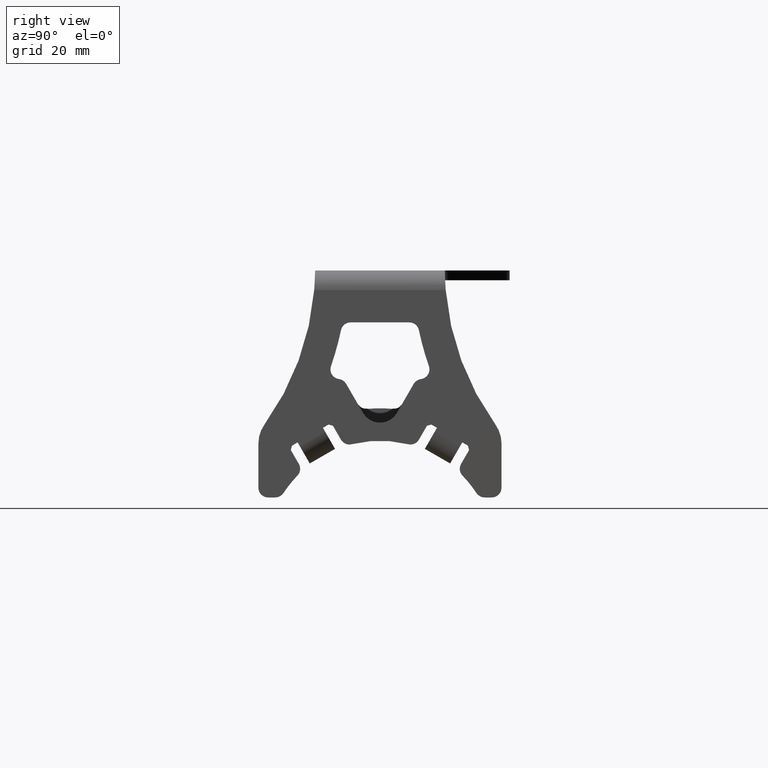
[diagram: clean part render]
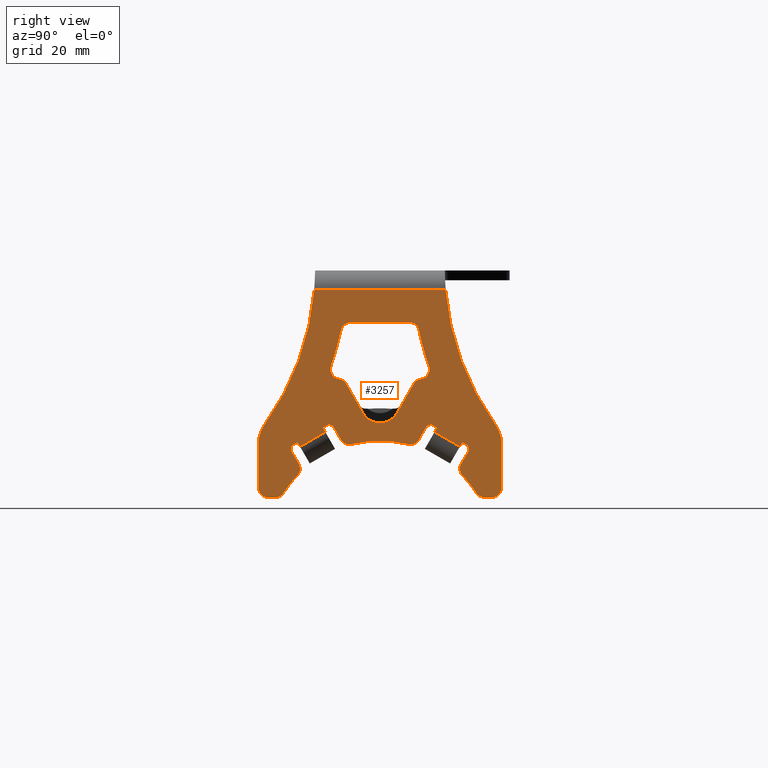
[diagram: same view with one face highlighted and labeled with its STEP entity id]
A machine part, right view. The second image highlights one B-rep face of the part: STEP entity #3257.
In plain terms, the highlighted planar face has unit normal (-1, 0, -0).
Its self-contained STEP definition (entity closure, byte-faithful):
#28=FACE_BOUND('',#525,.T.);
#40=CIRCLE('',#3392,6.0000000000246);
#72=CIRCLE('',#3443,35.5);
#73=CIRCLE('',#3445,35.5);
#74=CIRCLE('',#3447,35.5);
#83=CIRCLE('',#3471,3.);
#84=CIRCLE('',#3473,3.);
#85=CIRCLE('',#3475,3.);
#86=CIRCLE('',#3477,3.);
#87=CIRCLE('',#3479,3.);
#88=CIRCLE('',#3481,92.4414286425771);
#89=CIRCLE('',#3484,92.4414286425785);
#90=CIRCLE('',#3486,3.);
#91=CIRCLE('',#3492,3.);
#92=CIRCLE('',#3495,3.);
#93=CIRCLE('',#3498,3.);
#94=CIRCLE('',#3500,3.);
#95=CIRCLE('',#3503,3.);
#96=CIRCLE('',#3505,3.);
#97=CIRCLE('',#3507,3.);
#98=CIRCLE('',#3510,3.);
#99=CIRCLE('',#3512,10.);
#100=CIRCLE('',#3513,10.);
#101=CIRCLE('',#3514,82.4414286425785);
#102=CIRCLE('',#3515,82.4414286425771);
#341=FACE_OUTER_BOUND('',#524,.T.);
#524=EDGE_LOOP('',(#2425,#2426,#2427,#2428,#2429,#2430,#2431,#2432,#2433,
#2434,#2435,#2436,#2437,#2438,#2439,#2440,#2441,#2442,#2443,#2444,#2445,
#2446,#2447,#2448,#2449,#2450,#2451,#2452,#2453,#2454,#2455,#2456,#2457,
#2458,#2459,#2460,#2461,#2462));
#525=EDGE_LOOP('',(#2463,#2464,#2465,#2466,#2467,#2468,#2469,#2470,#2471,
#2472,#2473,#2474,#2475,#2476));
#654=LINE('',#4727,#982);
#659=LINE('',#4741,#987);
#716=LINE('',#4946,#1044);
#730=LINE('',#5045,#1058);
#732=LINE('',#5049,#1060);
#735=LINE('',#5055,#1063);
#738=LINE('',#5061,#1066);
#740=LINE('',#5065,#1068);
#743=LINE('',#5071,#1071);
#744=LINE('',#5080,#1072);
#745=LINE('',#5089,#1073);
#755=LINE('',#5121,#1083);
#757=LINE('',#5129,#1085);
#758=LINE('',#5131,#1086);
#761=LINE('',#5137,#1089);
#763=LINE('',#5142,#1091);
#767=LINE('',#5151,#1095);
#770=LINE('',#5159,#1098);
#774=LINE('',#5171,#1102);
#778=LINE('',#5185,#1106);
#779=LINE('',#5192,#1107);
#780=LINE('',#5193,#1108);
#781=LINE('',#5195,#1109);
#782=LINE('',#5196,#1110);
#783=LINE('',#5198,#1111);
#784=LINE('',#5199,#1112);
#785=LINE('',#5201,#1113);
#786=LINE('',#5202,#1114);
#982=VECTOR('',#3728,10.);
#987=VECTOR('',#3741,10.);
#1044=VECTOR('',#3894,10.);
#1058=VECTOR('',#3922,10.);
#1060=VECTOR('',#3926,10.);
#1063=VECTOR('',#3931,10.);
#1066=VECTOR('',#3936,10.);
#1068=VECTOR('',#3940,10.);
#1071=VECTOR('',#3945,10.);
#1072=VECTOR('',#3962,10.);
#1073=VECTOR('',#3979,10.);
#1083=VECTOR('',#4015,10.);
#1085=VECTOR('',#4027,10.);
#1086=VECTOR('',#4030,10.);
#1089=VECTOR('',#4035,10.);
#1091=VECTOR('',#4039,10.);
#1095=VECTOR('',#4049,10.);
#1098=VECTOR('',#4058,10.);
#1102=VECTOR('',#4072,10.);
#1106=VECTOR('',#4090,10.);
#1107=VECTOR('',#4099,10.);
#1108=VECTOR('',#4100,10.);
#1109=VECTOR('',#4101,10.);
#1110=VECTOR('',#4102,10.);
#1111=VECTOR('',#4103,10.);
#1112=VECTOR('',#4104,10.);
#1113=VECTOR('',#4105,10.);
#1114=VECTOR('',#4106,10.);
#1309=VERTEX_POINT('',#4723);
#1311=VERTEX_POINT('',#4726);
#1314=VERTEX_POINT('',#4734);
#1316=VERTEX_POINT('',#4740);
#1391=VERTEX_POINT('',#4944);
#1392=VERTEX_POINT('',#4945);
#1395=VERTEX_POINT('',#5023);
#1396=VERTEX_POINT('',#5025);
#1397=VERTEX_POINT('',#5029);
#1398=VERTEX_POINT('',#5031);
#1399=VERTEX_POINT('',#5035);
#1400=VERTEX_POINT('',#5037);
#1401=VERTEX_POINT('',#5041);
#1402=VERTEX_POINT('',#5043);
#1403=VERTEX_POINT('',#5047);
#1404=VERTEX_POINT('',#5051);
#1405=VERTEX_POINT('',#5053);
#1406=VERTEX_POINT('',#5057);
#1407=VERTEX_POINT('',#5059);
#1408=VERTEX_POINT('',#5063);
#1409=VERTEX_POINT('',#5067);
#1410=VERTEX_POINT('',#5069);
#1411=VERTEX_POINT('',#5091);
#1412=VERTEX_POINT('',#5092);
#1413=VERTEX_POINT('',#5097);
#1414=VERTEX_POINT('',#5098);
#1415=VERTEX_POINT('',#5103);
#1416=VERTEX_POINT('',#5104);
#1417=VERTEX_POINT('',#5109);
#1418=VERTEX_POINT('',#5111);
#1419=VERTEX_POINT('',#5115);
#1420=VERTEX_POINT('',#5125);
#1421=VERTEX_POINT('',#5133);
#1422=VERTEX_POINT('',#5135);
#1423=VERTEX_POINT('',#5139);
#1424=VERTEX_POINT('',#5141);
#1425=VERTEX_POINT('',#5145);
#1426=VERTEX_POINT('',#5149);
#1427=VERTEX_POINT('',#5155);
#1428=VERTEX_POINT('',#5157);
#1429=VERTEX_POINT('',#5163);
#1430=VERTEX_POINT('',#5167);
#1431=VERTEX_POINT('',#5169);
#1432=VERTEX_POINT('',#5175);
#1433=VERTEX_POINT('',#5179);
#1434=VERTEX_POINT('',#5183);
#1435=VERTEX_POINT('',#5189);
#1436=VERTEX_POINT('',#5191);
#1437=VERTEX_POINT('',#5194);
#1438=VERTEX_POINT('',#5197);
#1439=VERTEX_POINT('',#5200);
#1440=VERTEX_POINT('',#5203);
#1622=EDGE_CURVE('',#1311,#1309,#654,.T.);
#1626=EDGE_CURVE('',#1314,#1311,#40,.T.);
#1629=EDGE_CURVE('',#1316,#1314,#659,.T.);
#1719=EDGE_CURVE('',#1391,#1392,#716,.T.);
#1729=EDGE_CURVE('',#1396,#1395,#72,.T.);
#1732=EDGE_CURVE('',#1398,#1397,#73,.T.);
#1735=EDGE_CURVE('',#1400,#1399,#74,.T.);
#1738=EDGE_CURVE('',#1402,#1401,#730,.T.);
#1740=EDGE_CURVE('',#1403,#1402,#732,.T.);
#1743=EDGE_CURVE('',#1405,#1404,#735,.T.);
#1746=EDGE_CURVE('',#1407,#1406,#738,.T.);
#1748=EDGE_CURVE('',#1408,#1407,#740,.T.);
#1751=EDGE_CURVE('',#1410,#1409,#743,.T.);
#1756=EDGE_CURVE('',#1404,#1403,#744,.T.);
#1761=EDGE_CURVE('',#1409,#1408,#745,.T.);
#1762=EDGE_CURVE('',#1411,#1412,#83,.T.);
#1765=EDGE_CURVE('',#1413,#1414,#84,.T.);
#1768=EDGE_CURVE('',#1415,#1416,#85,.F.);
#1772=EDGE_CURVE('',#1417,#1418,#86,.F.);
#1774=EDGE_CURVE('',#1419,#1418,#87,.T.);
#1776=EDGE_CURVE('',#1413,#1417,#88,.T.);
#1777=EDGE_CURVE('',#1411,#1414,#755,.T.);
#1778=EDGE_CURVE('',#1416,#1412,#89,.T.);
#1780=EDGE_CURVE('',#1420,#1415,#90,.T.);
#1781=EDGE_CURVE('',#1316,#1420,#757,.T.);
#1782=EDGE_CURVE('',#1309,#1419,#758,.T.);
#1785=EDGE_CURVE('',#1422,#1421,#761,.T.);
#1787=EDGE_CURVE('',#1423,#1424,#763,.T.);
#1789=EDGE_CURVE('',#1425,#1424,#91,.T.);
#1792=EDGE_CURVE('',#1425,#1426,#767,.T.);
#1793=EDGE_CURVE('',#1398,#1426,#92,.T.);
#1796=EDGE_CURVE('',#1428,#1427,#770,.T.);
#1797=EDGE_CURVE('',#1428,#1397,#93,.T.);
#1799=EDGE_CURVE('',#1400,#1429,#94,.T.);
#1802=EDGE_CURVE('',#1431,#1430,#774,.T.);
#1803=EDGE_CURVE('',#1431,#1399,#95,.T.);
#1805=EDGE_CURVE('',#1396,#1432,#96,.T.);
#1806=EDGE_CURVE('',#1433,#1395,#97,.T.);
#1809=EDGE_CURVE('',#1433,#1434,#778,.T.);
#1810=EDGE_CURVE('',#1422,#1434,#98,.T.);
#1811=EDGE_CURVE('',#1435,#1421,#99,.T.);
#1812=EDGE_CURVE('',#1436,#1432,#779,.T.);
#1813=EDGE_CURVE('',#1436,#1406,#780,.T.);
#1814=EDGE_CURVE('',#1437,#1410,#781,.T.);
#1815=EDGE_CURVE('',#1437,#1430,#782,.T.);
#1816=EDGE_CURVE('',#1438,#1429,#783,.T.);
#1817=EDGE_CURVE('',#1438,#1401,#784,.T.);
#1818=EDGE_CURVE('',#1439,#1405,#785,.T.);
#1819=EDGE_CURVE('',#1439,#1427,#786,.T.);
#1820=EDGE_CURVE('',#1423,#1440,#100,.T.);
#1821=EDGE_CURVE('',#1392,#1440,#101,.T.);
#1822=EDGE_CURVE('',#1435,#1391,#102,.T.);
#2425=ORIENTED_EDGE('',*,*,#1811,.T.);
#2426=ORIENTED_EDGE('',*,*,#1785,.F.);
#2427=ORIENTED_EDGE('',*,*,#1810,.T.);
#2428=ORIENTED_EDGE('',*,*,#1809,.F.);
#2429=ORIENTED_EDGE('',*,*,#1806,.T.);
#2430=ORIENTED_EDGE('',*,*,#1729,.F.);
#2431=ORIENTED_EDGE('',*,*,#1805,.T.);
#2432=ORIENTED_EDGE('',*,*,#1812,.F.);
#2433=ORIENTED_EDGE('',*,*,#1813,.T.);
#2434=ORIENTED_EDGE('',*,*,#1746,.F.);
#2435=ORIENTED_EDGE('',*,*,#1748,.F.);
#2436=ORIENTED_EDGE('',*,*,#1761,.F.);
#2437=ORIENTED_EDGE('',*,*,#1751,.F.);
#2438=ORIENTED_EDGE('',*,*,#1814,.F.);
#2439=ORIENTED_EDGE('',*,*,#1815,.T.);
#2440=ORIENTED_EDGE('',*,*,#1802,.F.);
#2441=ORIENTED_EDGE('',*,*,#1803,.T.);
#2442=ORIENTED_EDGE('',*,*,#1735,.F.);
#2443=ORIENTED_EDGE('',*,*,#1799,.T.);
#2444=ORIENTED_EDGE('',*,*,#1816,.F.);
#2445=ORIENTED_EDGE('',*,*,#1817,.T.);
#2446=ORIENTED_EDGE('',*,*,#1738,.F.);
#2447=ORIENTED_EDGE('',*,*,#1740,.F.);
#2448=ORIENTED_EDGE('',*,*,#1756,.F.);
#2449=ORIENTED_EDGE('',*,*,#1743,.F.);
#2450=ORIENTED_EDGE('',*,*,#1818,.F.);
#2451=ORIENTED_EDGE('',*,*,#1819,.T.);
#2452=ORIENTED_EDGE('',*,*,#1796,.F.);
#2453=ORIENTED_EDGE('',*,*,#1797,.T.);
#2454=ORIENTED_EDGE('',*,*,#1732,.F.);
#2455=ORIENTED_EDGE('',*,*,#1793,.T.);
#2456=ORIENTED_EDGE('',*,*,#1792,.F.);
#2457=ORIENTED_EDGE('',*,*,#1789,.T.);
#2458=ORIENTED_EDGE('',*,*,#1787,.F.);
#2459=ORIENTED_EDGE('',*,*,#1820,.T.);
#2460=ORIENTED_EDGE('',*,*,#1821,.F.);
#2461=ORIENTED_EDGE('',*,*,#1719,.F.);
#2462=ORIENTED_EDGE('',*,*,#1822,.F.);
#2463=ORIENTED_EDGE('',*,*,#1622,.T.);
#2464=ORIENTED_EDGE('',*,*,#1782,.T.);
#2465=ORIENTED_EDGE('',*,*,#1774,.T.);
#2466=ORIENTED_EDGE('',*,*,#1772,.F.);
#2467=ORIENTED_EDGE('',*,*,#1776,.F.);
#2468=ORIENTED_EDGE('',*,*,#1765,.T.);
#2469=ORIENTED_EDGE('',*,*,#1777,.F.);
#2470=ORIENTED_EDGE('',*,*,#1762,.T.);
#2471=ORIENTED_EDGE('',*,*,#1778,.F.);
#2472=ORIENTED_EDGE('',*,*,#1768,.F.);
#2473=ORIENTED_EDGE('',*,*,#1780,.F.);
#2474=ORIENTED_EDGE('',*,*,#1781,.F.);
#2475=ORIENTED_EDGE('',*,*,#1629,.T.);
#2476=ORIENTED_EDGE('',*,*,#1626,.T.);
#3129=PLANE('',#3511);
#3257=ADVANCED_FACE('',(#341,#28),#3129,.F.);
#3392=AXIS2_PLACEMENT_3D('',#4735,#3735,#3736);
#3443=AXIS2_PLACEMENT_3D('',#5027,#3904,#3905);
#3445=AXIS2_PLACEMENT_3D('',#5033,#3910,#3911);
#3447=AXIS2_PLACEMENT_3D('',#5039,#3916,#3917);
#3471=AXIS2_PLACEMENT_3D('',#5093,#3982,#3983);
#3473=AXIS2_PLACEMENT_3D('',#5099,#3988,#3989);
#3475=AXIS2_PLACEMENT_3D('',#5105,#3994,#3995);
#3477=AXIS2_PLACEMENT_3D('',#5112,#4001,#4002);
#3479=AXIS2_PLACEMENT_3D('',#5116,#4006,#4007);
#3481=AXIS2_PLACEMENT_3D('',#5119,#4011,#4012);
#3484=AXIS2_PLACEMENT_3D('',#5123,#4018,#4019);
#3486=AXIS2_PLACEMENT_3D('',#5127,#4023,#4024);
#3492=AXIS2_PLACEMENT_3D('',#5146,#4043,#4044);
#3495=AXIS2_PLACEMENT_3D('',#5153,#4052,#4053);
#3498=AXIS2_PLACEMENT_3D('',#5161,#4061,#4062);
#3500=AXIS2_PLACEMENT_3D('',#5165,#4066,#4067);
#3503=AXIS2_PLACEMENT_3D('',#5173,#4075,#4076);
#3505=AXIS2_PLACEMENT_3D('',#5177,#4080,#4081);
#3507=AXIS2_PLACEMENT_3D('',#5180,#4084,#4085);
#3510=AXIS2_PLACEMENT_3D('',#5187,#4093,#4094);
#3511=AXIS2_PLACEMENT_3D('',#5188,#4095,#4096);
#3512=AXIS2_PLACEMENT_3D('',#5190,#4097,#4098);
#3513=AXIS2_PLACEMENT_3D('',#5204,#4107,#4108);
#3514=AXIS2_PLACEMENT_3D('',#5205,#4109,#4110);
#3515=AXIS2_PLACEMENT_3D('',#5206,#4111,#4112);
#3728=DIRECTION('',(-1.5935514581554E-15,-0.499999954605923,0.86602542999272));
#3735=DIRECTION('center_axis',(-1.,0.,-1.84007467098142E-15));
#3736=DIRECTION('ref_axis',(0.,-0.86602542999272,-0.499999954605923));
#3741=DIRECTION('',(1.59355136170936E-15,-0.500000045389974,-0.866025377578523));
#3894=DIRECTION('',(0.,1.,0.));
#3904=DIRECTION('center_axis',(1.,0.,1.84007467098142E-15));
#3905=DIRECTION('ref_axis',(-1.36467874985934E-15,-0.861921198917985,0.507042253521127));
#3910=DIRECTION('center_axis',(1.,0.,1.84007467098142E-15));
#3911=DIRECTION('ref_axis',(-1.99394413079214E-15,0.671677242289599,0.740843898665731));
#3916=DIRECTION('center_axis',(1.,0.,1.84007467098142E-15));
#3917=DIRECTION('ref_axis',(-2.56256027656686E-15,-0.305751015338425,0.952111504299534));
#3922=DIRECTION('',(-9.20037335490711E-16,-0.866025403784438,0.500000000000001));
#3926=DIRECTION('',(-1.5935514099302E-15,0.5,0.866025403784439));
#3931=DIRECTION('',(1.5935514099302E-15,-0.5,-0.866025403784439));
#3936=DIRECTION('',(9.20037335490706E-16,-0.86602540378444,-0.499999999999998));
#3940=DIRECTION('',(-1.5935514099302E-15,-0.499999999999999,0.866025403784439));
#3945=DIRECTION('',(1.5935514099302E-15,0.499999999999999,-0.866025403784439));
#3962=DIRECTION('',(-9.20037335490711E-16,-0.866025403784438,0.500000000000001));
#3979=DIRECTION('',(9.20037335490708E-16,-0.866025403784439,-0.499999999999999));
#3982=DIRECTION('center_axis',(-1.,0.,-1.84007467098142E-15));
#3983=DIRECTION('ref_axis',(0.,0.62955994286868,0.776951915072731));
#3988=DIRECTION('center_axis',(-1.,0.,-1.84007467098142E-15));
#3989=DIRECTION('ref_axis',(0.,-0.629559879154679,0.776951966699838));
#3994=DIRECTION('center_axis',(-1.,0.,-1.84007467098142E-15));
#3995=DIRECTION('ref_axis',(0.,0.944754534548987,0.327778689742222));
#4001=DIRECTION('center_axis',(-1.,0.,-1.84007467098142E-15));
#4002=DIRECTION('ref_axis',(0.,-0.944754471799468,0.327778870604725));
#4006=DIRECTION('center_axis',(1.,0.,1.84007467098142E-15));
#4007=DIRECTION('ref_axis',(0.,0.552956208785422,0.833210316286142));
#4011=DIRECTION('center_axis',(-1.,0.,-1.84007467098142E-15));
#4012=DIRECTION('ref_axis',(2.44361462179158E-16,0.983375525815702,-0.181583521352272));
#4015=DIRECTION('',(-7.08305686973369E-31,-1.,3.84933121543154E-16));
#4018=DIRECTION('center_axis',(-1.,0.,-1.84007467098142E-15));
#4019=DIRECTION('ref_axis',(5.54725221084057E-16,-0.911087528399442,-0.412212949329586));
#4023=DIRECTION('center_axis',(-1.,0.,-1.84007467098142E-15));
#4024=DIRECTION('ref_axis',(0.,-0.552956745400652,0.833209960163654));
#4027=DIRECTION('',(-1.5935514099302E-15,0.5,0.866025403784438));
#4030=DIRECTION('',(-1.5935514099302E-15,-0.499999999999998,0.86602540378444));
#4035=DIRECTION('',(-1.84007467098142E-15,0.,1.));
#4039=DIRECTION('',(1.84007467098142E-15,-8.88178419700124E-16,-1.));
#4043=DIRECTION('center_axis',(1.,0.,1.84007467098142E-15));
#4044=DIRECTION('ref_axis',(0.,0.707106781186548,-0.707106781186548));
#4049=DIRECTION('',(0.,-1.,0.));
#4052=DIRECTION('center_axis',(1.,0.,1.84007467098142E-15));
#4053=DIRECTION('ref_axis',(0.,-0.476731294622794,-0.879049072991534));
#4058=DIRECTION('',(-1.59355140993019E-15,0.500000000000014,0.866025403784431));
#4061=DIRECTION('center_axis',(1.,0.,1.84007467098142E-15));
#4062=DIRECTION('ref_axis',(0.,-0.992360624285522,-0.123370950258351));
#4066=DIRECTION('center_axis',(1.,0.,1.84007467098142E-15));
#4067=DIRECTION('ref_axis',(0.,0.389337935129989,-0.921094985475829));
#4072=DIRECTION('',(-1.59355140993022E-15,-0.499999999999985,0.866025403784447));
#4075=DIRECTION('center_axis',(1.,0.,1.84007467098142E-15));
#4076=DIRECTION('ref_axis',(0.,-0.389337935130004,-0.921094985475822));
#4080=DIRECTION('center_axis',(1.,0.,1.84007467098142E-15));
#4081=DIRECTION('ref_axis',(0.,0.992360624285521,-0.123370950258361));
#4084=DIRECTION('center_axis',(1.,0.,1.84007467098142E-15));
#4085=DIRECTION('ref_axis',(0.,0.476731294622795,-0.879049072991533));
#4090=DIRECTION('',(0.,-1.,0.));
#4093=DIRECTION('center_axis',(1.,0.,1.84007467098142E-15));
#4094=DIRECTION('ref_axis',(0.,-0.707106781186548,-0.707106781186548));
#4095=DIRECTION('center_axis',(-1.,0.,-1.84007467098142E-15));
#4096=DIRECTION('ref_axis',(-1.84007467098142E-15,0.,1.));
#4097=DIRECTION('center_axis',(1.,0.,1.84007467098142E-15));
#4098=DIRECTION('ref_axis',(0.,-0.951496437087984,0.307659763714515));
#4099=DIRECTION('',(1.5935514099302E-15,0.500000000000002,-0.866025403784437));
#4100=DIRECTION('',(-1.77737564700131E-15,0.258819045102533,0.965925826289065));
#4101=DIRECTION('',(9.20037335490706E-16,-0.86602540378444,-0.499999999999998));
#4102=DIRECTION('',(4.76246369260647E-16,0.965925826289083,-0.258819045102467));
#4103=DIRECTION('',(1.59355140993019E-15,-0.500000000000011,-0.866025403784432));
#4104=DIRECTION('',(-4.76246369260818E-16,0.965925826289058,0.25881904510256));
#4105=DIRECTION('',(-9.20037335490711E-16,-0.866025403784438,0.500000000000001));
#4106=DIRECTION('',(1.77737564700129E-15,0.258819045102563,-0.965925826289057));
#4107=DIRECTION('center_axis',(1.,0.,1.84007467098142E-15));
#4108=DIRECTION('ref_axis',(0.,0.951496437087981,0.307659763714524));
#4109=DIRECTION('center_axis',(1.,0.,1.84007467098142E-15));
#4110=DIRECTION('ref_axis',(1.13352851147788E-15,-0.787728084190875,-0.616023104580481));
#4111=DIRECTION('center_axis',(1.,0.,1.84007467098142E-15));
#4112=DIRECTION('ref_axis',(0.,1.,0.));
#4723=CARTESIAN_POINT('',(100.,-16.8218164096081,-38.1842673786516));
#4726=CARTESIAN_POINT('',(100.,-15.1961532123504,-40.9999997276478));
#4727=CARTESIAN_POINT('',(100.,-43.3446483379951,7.75462988836384));
#4734=CARTESIAN_POINT('',(100.,-4.80384836688034,-41.0000002723521));
#4735=CARTESIAN_POINT('Origin',(99.9999999999998,-10.0000006323728,-38.));
#4740=CARTESIAN_POINT('',(100.,-3.17818359039188,-38.1842673786517));
#4741=CARTESIAN_POINT('',(99.9999999999999,28.4567822237284,16.6090948293606));
#4944=CARTESIAN_POINT('',(100.,-30.2797494342295,-2.99999999999999));
#4945=CARTESIAN_POINT('',(100.,10.279748169484,-2.99999999999999));
#4946=CARTESIAN_POINT('',(100.,-5.,-2.99999999999999));
#5023=CARTESIAN_POINT('',(100.,-39.7539843848997,-65.6363636363636));
#5025=CARTESIAN_POINT('',(100.,-35.4618225989662,-60.2624659689213));
#5027=CARTESIAN_POINT('Origin',(100.,-10.,-85.));
#5029=CARTESIAN_POINT('',(100.,15.4618225989663,-60.2624659689214));
#5031=CARTESIAN_POINT('',(100.,19.7539843848997,-65.6363636363636));
#5033=CARTESIAN_POINT('Origin',(100.,-10.,-85.));
#5035=CARTESIAN_POINT('',(100.,-18.6924215984129,-50.5806477871032));
#5037=CARTESIAN_POINT('',(100.,-1.30757840158696,-50.5806477871032));
#5039=CARTESIAN_POINT('Origin',(100.,-10.,-85.));
#5041=CARTESIAN_POINT('',(100.,5.87083487540115,-44.5109076372692));
#5043=CARTESIAN_POINT('',(100.,7.60288568297002,-45.5109076372692));
#5045=CARTESIAN_POINT('',(100.,-27.5718905157367,-25.2027411302609));
#5047=CARTESIAN_POINT('',(100.,6.85288568297002,-46.8099457429458));
#5049=CARTESIAN_POINT('',(100.,37.6771809345151,6.57929974023424));
#5051=CARTESIAN_POINT('',(100.,14.64711431703,-51.3099457429458));
#5053=CARTESIAN_POINT('',(100.,15.39711431703,-50.0109076372692));
#5055=CARTESIAN_POINT('',(100.,43.596409568575,-1.16829552395742));
#5057=CARTESIAN_POINT('',(100.,-37.1291651245988,-51.0109076372691));
#5059=CARTESIAN_POINT('',(100.,-35.3971143170299,-50.0109076372691));
#5061=CARTESIAN_POINT('',(100.,8.57669998735337,-24.6226141113389));
#5063=CARTESIAN_POINT('',(100.,-34.6471143170299,-51.3099457429457));
#5065=CARTESIAN_POINT('',(100.,-62.9714095685749,-2.25082727868779));
#5067=CARTESIAN_POINT('',(100.,-26.8528856829699,-46.8099457429458));
#5069=CARTESIAN_POINT('',(100.,-27.6028856829699,-45.5109076372691));
#5071=CARTESIAN_POINT('',(100.,-53.3021809345149,-0.998422542879461));
#5080=CARTESIAN_POINT('',(100.,-27.02285241006,-27.2517792359376));
#5089=CARTESIAN_POINT('',(100.,10.62573809303,-25.1716522170155));
#5091=CARTESIAN_POINT('',(100.,-0.92659285081197,-13.));
#5092=CARTESIAN_POINT('',(99.9999999999999,2.00823396877745,-15.3780743299889));
#5093=CARTESIAN_POINT('Origin',(100.,-0.926592850811971,-16.));
#5097=CARTESIAN_POINT('',(99.9999999999999,-22.008237111854,-15.3780738486475));
#5098=CARTESIAN_POINT('',(100.,-19.0734103942668,-13.));
#5099=CARTESIAN_POINT('Origin',(100.,-19.0734103942668,-16.));
#5103=CARTESIAN_POINT('',(100.,2.64559874490872,-30.4745765841858));
#5104=CARTESIAN_POINT('',(100.,5.10696975231447,-26.5145055399121));
#5105=CARTESIAN_POINT('Origin',(100.,2.27270614866751,-27.4978416091387));
#5109=CARTESIAN_POINT('',(100.,-25.106975552971,-26.5145069457973));
#5111=CARTESIAN_POINT('',(100.,-22.6456008995795,-30.4745790129667));
#5112=CARTESIAN_POINT('Origin',(100.,-22.2727121375726,-27.4978435576115));
#5115=CARTESIAN_POINT('',(100.,-20.4204134502331,-31.951314468322));
#5116=CARTESIAN_POINT('Origin',(100.,-23.0184896615864,-33.451314468322));
#5119=CARTESIAN_POINT('Origin',(99.9999999999999,-112.441428642577,3.78584013175393));
#5121=CARTESIAN_POINT('',(100.,0.768393658188163,-13.));
#5123=CARTESIAN_POINT('Origin',(99.9999999999999,92.4414286425771,3.7858248184514));
#5125=CARTESIAN_POINT('',(100.,0.42041512979663,-31.9513115592329));
#5127=CARTESIAN_POINT('Origin',(100.,3.01849134114994,-33.4513115592329));
#5129=CARTESIAN_POINT('',(100.,26.1688506853173,12.6462870383419));
#5131=CARTESIAN_POINT('',(100.,-46.4188506853172,13.0792997402345));
#5133=CARTESIAN_POINT('',(100.,-47.5,-50.336244108325));
#5135=CARTESIAN_POINT('',(100.,-47.5,-64.));
#5137=CARTESIAN_POINT('',(99.9999999999999,-47.5,25.3929277225283));
#5139=CARTESIAN_POINT('',(100.,27.5,-50.3362594216299));
#5141=CARTESIAN_POINT('',(100.,27.5,-64.));
#5142=CARTESIAN_POINT('',(100.,27.5000000000001,15.392920065877));
#5145=CARTESIAN_POINT('',(100.,24.5,-67.));
#5146=CARTESIAN_POINT('Origin',(100.,24.5,-64.));
#5149=CARTESIAN_POINT('',(100.,22.2684056005251,-67.));
#5151=CARTESIAN_POINT('',(100.,-30.,-67.));
#5153=CARTESIAN_POINT('Origin',(100.,22.2684056005251,-64.));
#5155=CARTESIAN_POINT('',(100.,17.4951905283834,-52.3769330410537));
#5157=CARTESIAN_POINT('',(100.,15.0154497058355,-56.6719701353091));
#5159=CARTESIAN_POINT('',(100.,45.9941615663776,-3.01526723981558));
#5161=CARTESIAN_POINT('Origin',(100.,17.6135259171888,-58.1719701353092));
#5163=CARTESIAN_POINT('',(100.,2.02506864906884,-49.1719701353092));
#5165=CARTESIAN_POINT('Origin',(100.,-0.573007562284457,-47.6719701353091));
#5167=CARTESIAN_POINT('',(100.,-24.5048094716165,-44.8769330410535));
#5169=CARTESIAN_POINT('',(100.,-22.0250686490687,-49.1719701353091));
#5171=CARTESIAN_POINT('',(100.,-50.5037805096099,0.154605741264615));
#5173=CARTESIAN_POINT('Origin',(100.,-19.4269924377154,-47.6719701353091));
#5175=CARTESIAN_POINT('',(100.,-35.0154497058353,-56.6719701353091));
#5177=CARTESIAN_POINT('Origin',(100.,-37.6135259171887,-58.1719701353091));
#5179=CARTESIAN_POINT('',(100.,-42.2684056005251,-67.));
#5180=CARTESIAN_POINT('Origin',(100.,-42.2684056005251,-64.));
#5183=CARTESIAN_POINT('',(100.,-44.5,-67.));
#5185=CARTESIAN_POINT('',(100.,-30.,-67.));
#5187=CARTESIAN_POINT('Origin',(100.,-44.5,-64.));
#5188=CARTESIAN_POINT('Origin',(99.9999999999998,0.,97.785840131754));
#5189=CARTESIAN_POINT('',(100.,-45.6069093958226,-44.4815007281311));
#5190=CARTESIAN_POINT('Origin',(100.,-37.5,-50.336244108325));
#5191=CARTESIAN_POINT('',(100.,-37.4951905283832,-52.3769330410535));
#5192=CARTESIAN_POINT('',(100.,-63.6944857799283,-6.99842254287971));
#5193=CARTESIAN_POINT('',(99.9999999999999,-17.3774867780688,22.703359486735));
#5194=CARTESIAN_POINT('',(100.,-25.8708348754011,-44.5109076372691));
#5195=CARTESIAN_POINT('',(100.,13.77285241006,-21.6226141113389));
#5196=CARTESIAN_POINT('',(100.,-31.2475132219263,-43.0702310163561));
#5197=CARTESIAN_POINT('',(100.,4.50480947161678,-44.8769330410536));
#5198=CARTESIAN_POINT('',(100.,33.2041047231622,4.83170447604175));
#5199=CARTESIAN_POINT('',(100.,20.577640240855,-40.5702310163535));
#5200=CARTESIAN_POINT('',(100.,17.1291651245988,-51.0109076372692));
#5201=CARTESIAN_POINT('',(100.,-22.3757380930301,-28.2027411302609));
#5202=CARTESIAN_POINT('',(99.9999999999999,-1.95264024085537,20.2033594867339));
#5203=CARTESIAN_POINT('',(100.,25.6069093958225,-44.4815160414359));
#5204=CARTESIAN_POINT('Origin',(100.,17.5,-50.3362594216299));
#5205=CARTESIAN_POINT('Origin',(100.,92.4414286425771,3.78582481845143));
#5206=CARTESIAN_POINT('Origin',(100.,-112.441428642577,3.78584013175397));